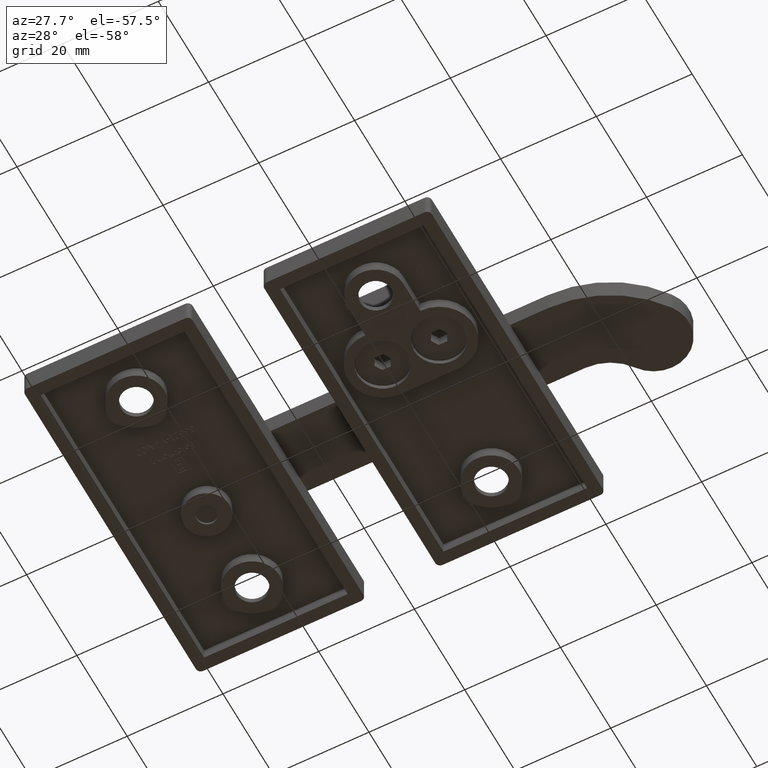
[diagram: clean part render]
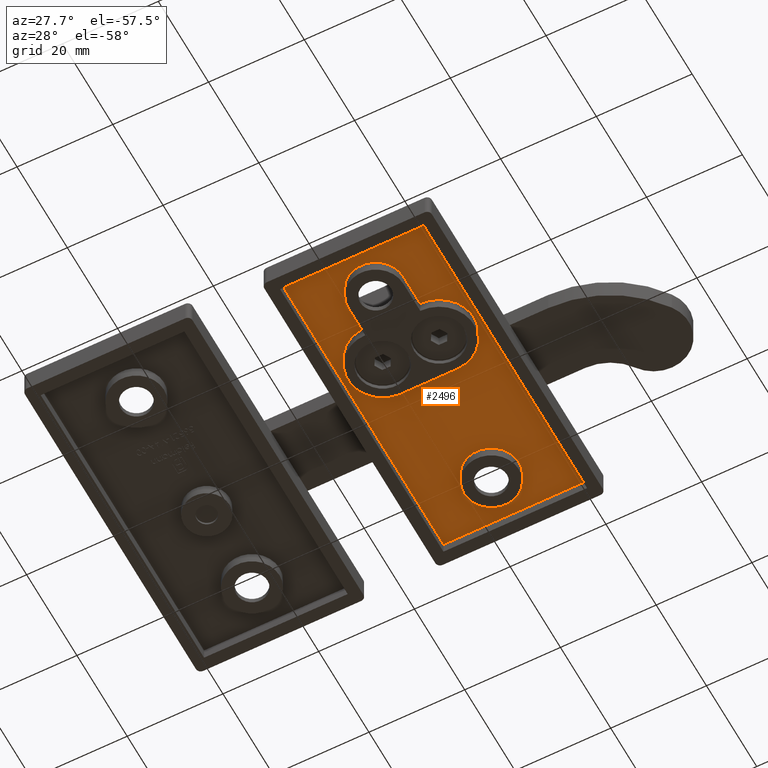
[diagram: same view with one face highlighted and labeled with its STEP entity id]
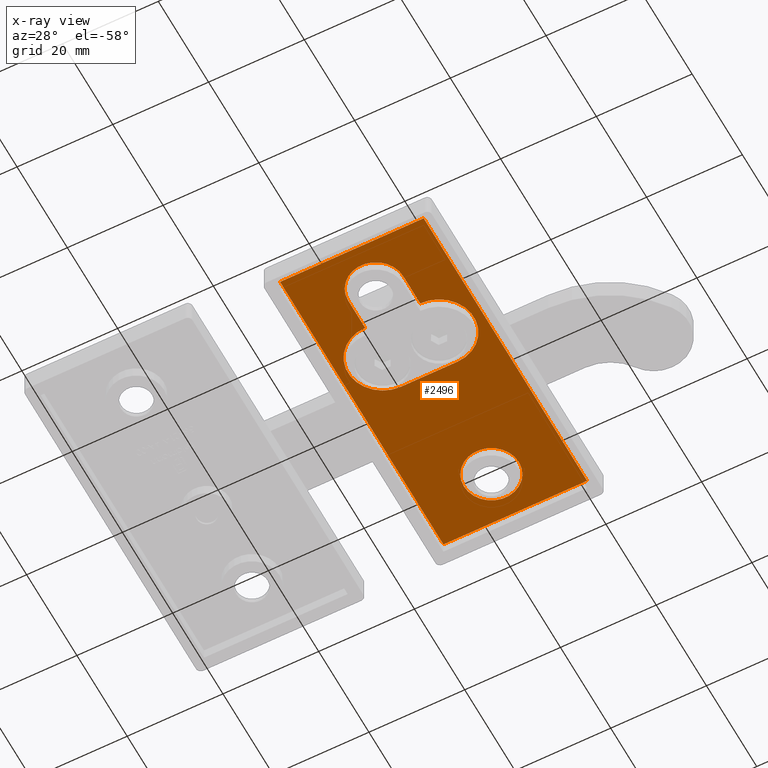
[diagram: x-ray of the same camera — body ghosted, the highlighted face saturated]
A machine part, auxiliary view. The second image highlights one B-rep face of the part: STEP entity #2496.
The next image is the same camera in x-ray: the body ghosted, the highlighted face saturated — about 0% of this face is hidden behind the body in this view.
In plain terms, the highlighted planar face has unit normal (0, 0, -1).
Its self-contained STEP definition (entity closure, byte-faithful):
#774 = CARTESIAN_POINT ( 'NONE',  ( -15.00000000000000178, 32.49999999999998579, 0.000000000000000000 ) ) ;
#821 = CIRCLE ( 'NONE', #15359, 5.750000000000000888 ) ;
#823 = AXIS2_PLACEMENT_3D ( 'NONE', #1493, #16596, #1153 ) ;
#1088 = EDGE_CURVE ( 'NONE', #17872, #8070, #13091, .T. ) ;
#1101 = DIRECTION ( 'NONE',  ( 0.000000000000000000, -1.000000000000000000, 0.000000000000000000 ) ) ;
#1153 = DIRECTION ( 'NONE',  ( -1.000000000000000000, 0.000000000000000000, 0.000000000000000000 ) ) ;
#1493 = CARTESIAN_POINT ( 'NONE',  ( 0.000000000000000000, 23.00000000000000000, 0.000000000000000000 ) ) ;
#1515 = DIRECTION ( 'NONE',  ( -1.000000000000000000, 0.000000000000000000, 0.000000000000000000 ) ) ;
#1670 = AXIS2_PLACEMENT_3D ( 'NONE', #8355, #18935, #17612 ) ;
#2125 = VERTEX_POINT ( 'NONE', #774 ) ;
#2496 = ADVANCED_FACE ( 'NONE', ( #18749, #18268, #3627 ), #7735, .T. ) ;
#2862 = EDGE_CURVE ( 'NONE', #8070, #8457, #17318, .T. ) ;
#3066 = CARTESIAN_POINT ( 'NONE',  ( -5.899999999999998579, -1.749999999999997113, 0.000000000000000000 ) ) ;
#3328 = ORIENTED_EDGE ( 'NONE', *, *, #19316, .F. ) ;
#3375 = ORIENTED_EDGE ( 'NONE', *, *, #13789, .F. ) ;
#3593 = ORIENTED_EDGE ( 'NONE', *, *, #2862, .F. ) ;
#3596 = CIRCLE ( 'NONE', #823, 5.750000000000000888 ) ;
#3627 = FACE_OUTER_BOUND ( 'NONE', #11727, .T. ) ;
#3809 = CARTESIAN_POINT ( 'NONE',  ( -5.750000000000001776, -23.00000000000000000, 0.000000000000000000 ) ) ;
#4192 = ORIENTED_EDGE ( 'NONE', *, *, #9346, .F. ) ;
#4197 = ORIENTED_EDGE ( 'NONE', *, *, #5284, .F. ) ;
#4595 = CARTESIAN_POINT ( 'NONE',  ( 5.750000000000001776, -23.00000000000000000, 0.000000000000000000 ) ) ;
#4754 = CARTESIAN_POINT ( 'NONE',  ( -15.00000000000000178, 32.49999999999998579, 0.000000000000000000 ) ) ;
#4964 = CARTESIAN_POINT ( 'NONE',  ( 5.899999999999998579, -1.749999999999998002, 0.000000000000000000 ) ) ;
#5284 = EDGE_CURVE ( 'NONE', #13052, #7597, #7332, .T. ) ;
#5519 = CARTESIAN_POINT ( 'NONE',  ( 15.00000000000000355, 32.49999999999998579, 0.000000000000000000 ) ) ;
#5915 = DIRECTION ( 'NONE',  ( 0.000000000000000000, 0.000000000000000000, -1.000000000000000000 ) ) ;
#5998 = CARTESIAN_POINT ( 'NONE',  ( 5.750000000000001776, -16.24844810976804865, 0.000000000000000000 ) ) ;
#6533 = LINE ( 'NONE', #18752, #16697 ) ;
#6944 = DIRECTION ( 'NONE',  ( 1.284684991080776656E-16, 1.000000000000000000, 0.000000000000000000 ) ) ;
#7194 = DIRECTION ( 'NONE',  ( -1.000000000000000000, 0.000000000000000000, 0.000000000000000000 ) ) ;
#7332 = CIRCLE ( 'NONE', #1670, 7.250000000000000888 ) ;
#7504 = CARTESIAN_POINT ( 'NONE',  ( -5.750000000000000888, 23.00000000000000000, 0.000000000000000000 ) ) ;
#7597 = VERTEX_POINT ( 'NONE', #3066 ) ;
#7735 = PLANE ( 'NONE',  #9370 ) ;
#7742 = VERTEX_POINT ( 'NONE', #17057 ) ;
#7923 = ORIENTED_EDGE ( 'NONE', *, *, #8452, .T. ) ;
#7942 = DIRECTION ( 'NONE',  ( -1.284684991080776656E-16, -1.000000000000000000, -0.000000000000000000 ) ) ;
#7953 = ORIENTED_EDGE ( 'NONE', *, *, #9815, .T. ) ;
#8070 = VERTEX_POINT ( 'NONE', #5998 ) ;
#8355 = CARTESIAN_POINT ( 'NONE',  ( -5.899999999999998579, -9.000000000000000000, 0.000000000000000000 ) ) ;
#8452 = EDGE_CURVE ( 'NONE', #2125, #16579, #14570, .T. ) ;
#8457 = VERTEX_POINT ( 'NONE', #4595 ) ;
#8688 = LINE ( 'NONE', #5519, #10605 ) ;
#9346 = EDGE_CURVE ( 'NONE', #7742, #13052, #13842, .T. ) ;
#9370 = AXIS2_PLACEMENT_3D ( 'NONE', #18324, #12306, #15361 ) ;
#9512 = CARTESIAN_POINT ( 'NONE',  ( 0.000000000000000000, -23.00000000000000000, 0.000000000000000000 ) ) ;
#9815 = EDGE_CURVE ( 'NONE', #13281, #15086, #16655, .T. ) ;
#10152 = EDGE_CURVE ( 'NONE', #8457, #7742, #821, .T. ) ;
#10384 = VECTOR ( 'NONE', #10834, 1000.000000000000000 ) ;
#10605 = VECTOR ( 'NONE', #1101, 1000.000000000000000 ) ;
#10665 = CARTESIAN_POINT ( 'NONE',  ( 15.00000000000000355, 32.49999999999998579, 0.000000000000000000 ) ) ;
#10757 = VECTOR ( 'NONE', #7194, 1000.000000000000000 ) ;
#10834 = DIRECTION ( 'NONE',  ( -0.000000000000000000, 1.000000000000000000, -0.000000000000000000 ) ) ;
#11238 = AXIS2_PLACEMENT_3D ( 'NONE', #18011, #5915, #1515 ) ;
#11475 = VECTOR ( 'NONE', #6944, 1000.000000000000000 ) ;
#11727 = EDGE_LOOP ( 'NONE', ( #18905, #7923, #14376, #7953 ) ) ;
#12086 = CARTESIAN_POINT ( 'NONE',  ( 15.00000000000000355, 32.49999999999998579, 0.000000000000000000 ) ) ;
#12200 = CARTESIAN_POINT ( 'NONE',  ( -15.00000000000000178, -32.49999999999999289, 0.000000000000000000 ) ) ;
#12306 = DIRECTION ( 'NONE',  ( -0.000000000000000000, 0.000000000000000000, -1.000000000000000000 ) ) ;
#12714 = DIRECTION ( 'NONE',  ( -1.000000000000000000, 0.000000000000000000, 0.000000000000000000 ) ) ;
#12818 = VECTOR ( 'NONE', #7942, 1000.000000000000000 ) ;
#13052 = VERTEX_POINT ( 'NONE', #14787 ) ;
#13091 = CIRCLE ( 'NONE', #11238, 7.250000000000000888 ) ;
#13281 = VERTEX_POINT ( 'NONE', #13590 ) ;
#13368 = ORIENTED_EDGE ( 'NONE', *, *, #1088, .F. ) ;
#13590 = CARTESIAN_POINT ( 'NONE',  ( 15.00000000000000355, -32.49999999999999289, 0.000000000000000000 ) ) ;
#13646 = DIRECTION ( 'NONE',  ( 1.000000000000000000, -0.000000000000000000, -0.000000000000000000 ) ) ;
#13789 = EDGE_CURVE ( 'NONE', #17398, #17398, #3596, .T. ) ;
#13842 = LINE ( 'NONE', #3809, #11475 ) ;
#13999 = EDGE_LOOP ( 'NONE', ( #3375 ) ) ;
#14185 = ORIENTED_EDGE ( 'NONE', *, *, #10152, .F. ) ;
#14376 = ORIENTED_EDGE ( 'NONE', *, *, #16927, .T. ) ;
#14570 = LINE ( 'NONE', #10665, #19492 ) ;
#14787 = CARTESIAN_POINT ( 'NONE',  ( -5.750000000000001776, -16.24844810976804865, 0.000000000000000000 ) ) ;
#15086 = VERTEX_POINT ( 'NONE', #12200 ) ;
#15093 = LINE ( 'NONE', #4754, #10384 ) ;
#15359 = AXIS2_PLACEMENT_3D ( 'NONE', #9512, #18739, #12714 ) ;
#15361 = DIRECTION ( 'NONE',  ( -1.000000000000000000, 0.000000000000000000, 0.000000000000000000 ) ) ;
#15572 = EDGE_LOOP ( 'NONE', ( #4197, #4192, #14185, #3593, #13368, #3328 ) ) ;
#16579 = VERTEX_POINT ( 'NONE', #12086 ) ;
#16596 = DIRECTION ( 'NONE',  ( 0.000000000000000000, 0.000000000000000000, -1.000000000000000000 ) ) ;
#16655 = LINE ( 'NONE', #19255, #10757 ) ;
#16671 = EDGE_CURVE ( 'NONE', #15086, #2125, #15093, .T. ) ;
#16697 = VECTOR ( 'NONE', #18688, 1000.000000000000000 ) ;
#16927 = EDGE_CURVE ( 'NONE', #16579, #13281, #8688, .T. ) ;
#17002 = CARTESIAN_POINT ( 'NONE',  ( 5.750000000000001776, -23.00000000000000000, 0.000000000000000000 ) ) ;
#17057 = CARTESIAN_POINT ( 'NONE',  ( -5.750000000000001776, -23.00000000000000000, 0.000000000000000000 ) ) ;
#17318 = LINE ( 'NONE', #17002, #12818 ) ;
#17398 = VERTEX_POINT ( 'NONE', #7504 ) ;
#17612 = DIRECTION ( 'NONE',  ( -1.000000000000000000, 0.000000000000000000, 0.000000000000000000 ) ) ;
#17872 = VERTEX_POINT ( 'NONE', #4964 ) ;
#18011 = CARTESIAN_POINT ( 'NONE',  ( 5.899999999999998579, -9.000000000000000000, 0.000000000000000000 ) ) ;
#18268 = FACE_BOUND ( 'NONE', #13999, .T. ) ;
#18324 = CARTESIAN_POINT ( 'NONE',  ( 0.000000000000000000, 0.000000000000000000, 0.000000000000000000 ) ) ;
#18688 = DIRECTION ( 'NONE',  ( 1.000000000000000000, 0.000000000000000000, -0.000000000000000000 ) ) ;
#18739 = DIRECTION ( 'NONE',  ( 0.000000000000000000, 0.000000000000000000, -1.000000000000000000 ) ) ;
#18749 = FACE_BOUND ( 'NONE', #15572, .T. ) ;
#18752 = CARTESIAN_POINT ( 'NONE',  ( -5.899999999999998579, -1.749999999999997113, 0.000000000000000000 ) ) ;
#18905 = ORIENTED_EDGE ( 'NONE', *, *, #16671, .T. ) ;
#18935 = DIRECTION ( 'NONE',  ( 0.000000000000000000, 0.000000000000000000, -1.000000000000000000 ) ) ;
#19255 = CARTESIAN_POINT ( 'NONE',  ( 15.00000000000000355, -32.49999999999999289, 0.000000000000000000 ) ) ;
#19316 = EDGE_CURVE ( 'NONE', #7597, #17872, #6533, .T. ) ;
#19492 = VECTOR ( 'NONE', #13646, 1000.000000000000000 ) ;